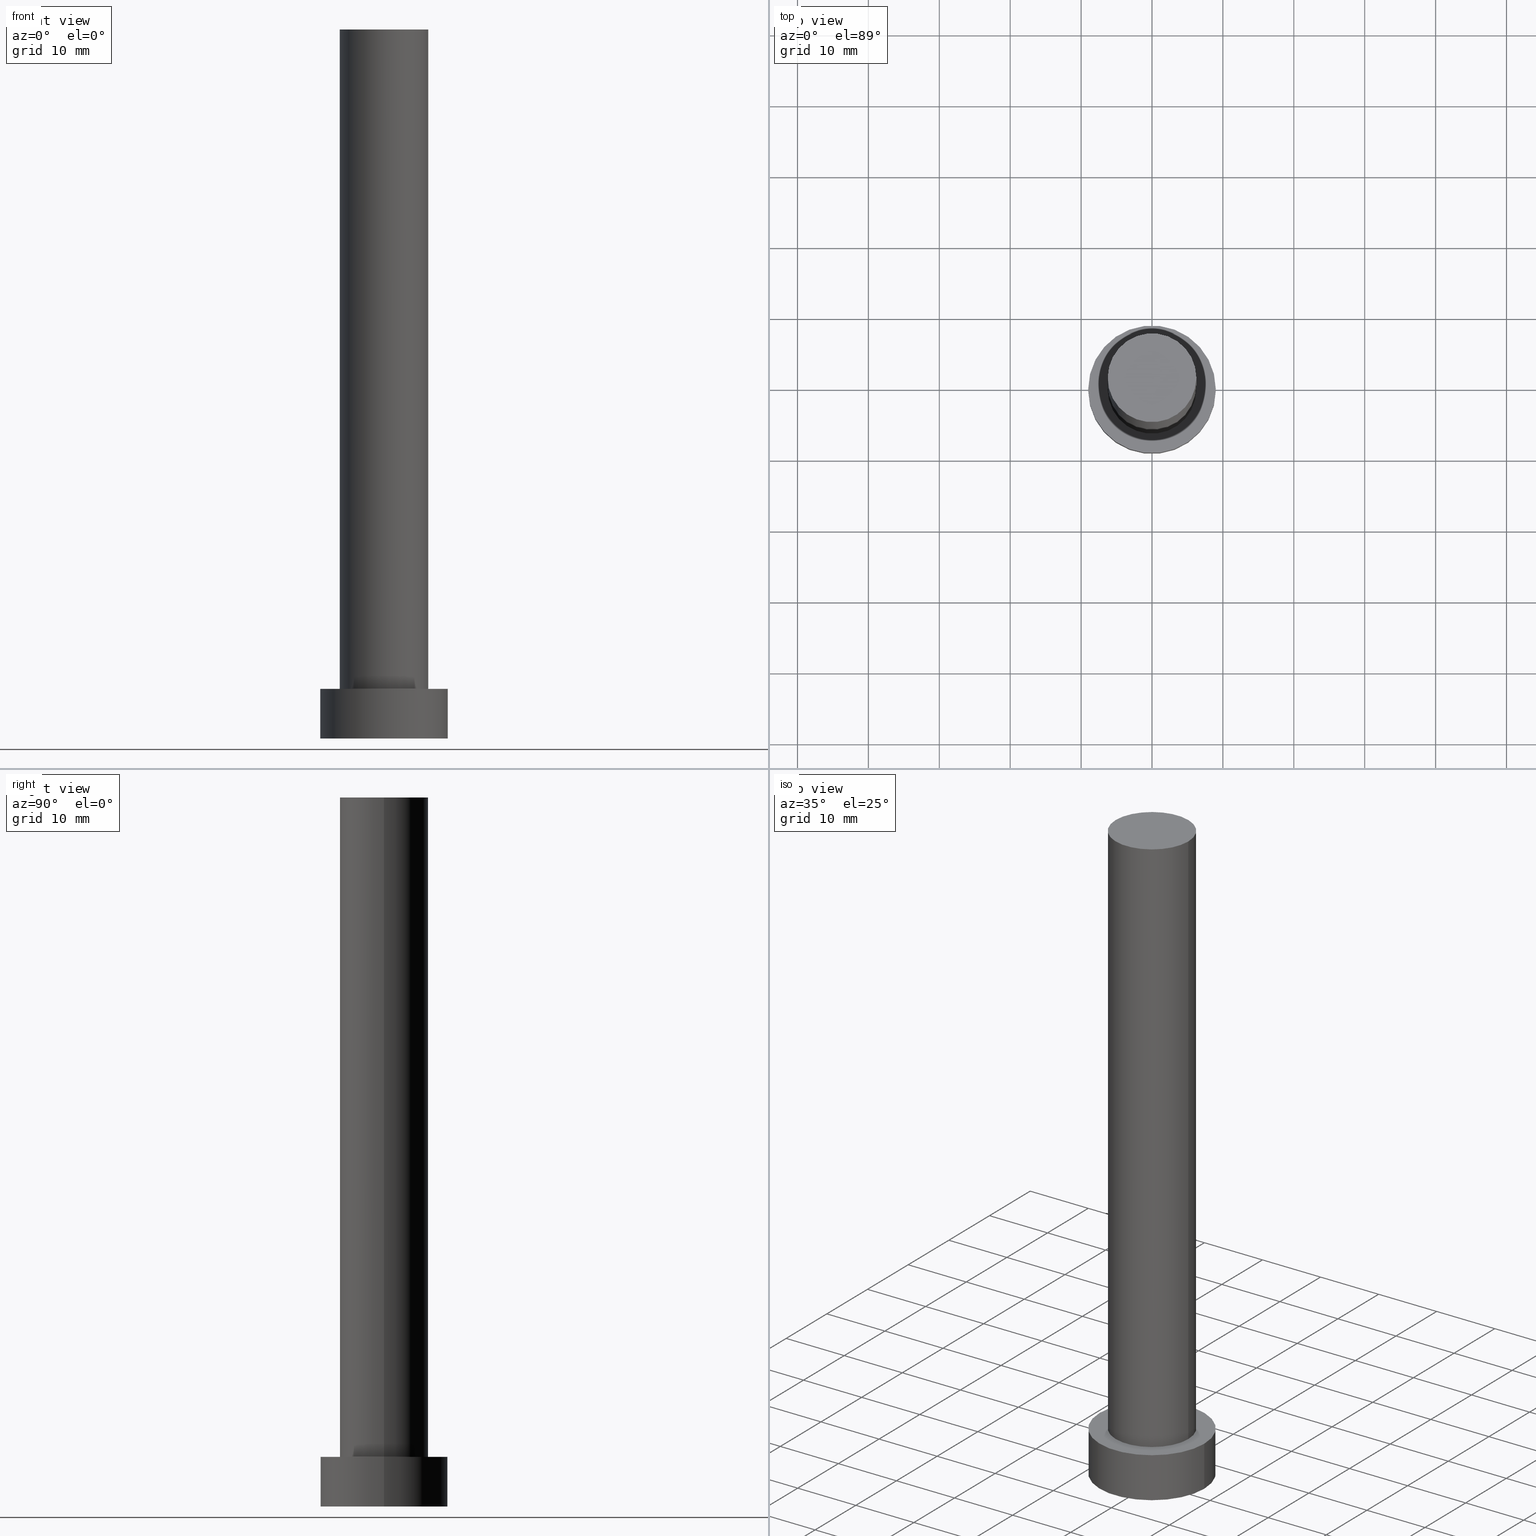
[diagram: canonical four-view strip — front | top / right | iso, engineering-drawing reading convention]
A machine part, canonical four-view strip (front | top / right | iso — engineering-drawing reading convention). The complete STEP part file that produces these views, byte-faithful:
ISO-10303-21;
HEADER;
FILE_DESCRIPTION (( 'STEP AP203' ),
    '1' );
FILE_NAME ('68f3.STEP',
    '2023-02-13T12:24:07',
    ( '' ),
    ( '' ),
    'SwSTEP 2.0',
    'SolidWorks 2019',
    '' );
FILE_SCHEMA (( 'CONFIG_CONTROL_DESIGN' ));
ENDSEC;

DATA;
#1 = DIRECTION ( 'NONE',  ( 0.000000000000000000, 0.000000000000000000, 1.000000000000000000 ) ) ;
#2 = ADVANCED_FACE ( 'NONE', ( #22 ), #101, .F. ) ;
#3 = APPLICATION_PROTOCOL_DEFINITION ( 'international standard', 'config_control_design', 1994, #98 ) ;
#4 = PERSON_AND_ORGANIZATION_ROLE ( 'design_supplier' ) ;
#5 = AXIS2_PLACEMENT_3D ( 'NONE', #227, #12, #166 ) ;
#6 = EDGE_LOOP ( 'NONE', ( #204, #61 ) ) ;
#7 = PERSON_AND_ORGANIZATION_ROLE ( 'creator' ) ;
#8 = ORIENTED_EDGE ( 'NONE', *, *, #137, .T. ) ;
#9 = CARTESIAN_POINT ( 'NONE',  ( -6.250000000000000000, 0.000000000000000000, 100.0000000000000000 ) ) ;
#10 = CIRCLE ( 'NONE', #250, 9.000000000000000000 ) ;
#11 = DIRECTION ( 'NONE',  ( 0.000000000000000000, 0.000000000000000000, 1.000000000000000000 ) ) ;
#12 = DIRECTION ( 'NONE',  ( 0.000000000000000000, 0.000000000000000000, 1.000000000000000000 ) ) ;
#13 = CIRCLE ( 'NONE', #39, 6.250000000000000000 ) ;
#14 = AXIS2_PLACEMENT_3D ( 'NONE', #144, #107, #52 ) ;
#15 = DIRECTION ( 'NONE',  ( 1.000000000000000000, 0.000000000000000000, -0.000000000000000000 ) ) ;
#16 = APPLICATION_PROTOCOL_DEFINITION ( 'international standard', 'config_control_design', 1994, #75 ) ;
#17 = EDGE_CURVE ( 'NONE', #48, #43, #10, .T. ) ;
#18 = APPROVAL_ROLE ( '' ) ;
#19 = EDGE_CURVE ( 'NONE', #48, #40, #68, .T. ) ;
#20 = VERTEX_POINT ( 'NONE', #167 ) ;
#21 = PERSON_AND_ORGANIZATION ( #77, #163 ) ;
#22 = FACE_OUTER_BOUND ( 'NONE', #162, .T. ) ;
#23 =( GEOMETRIC_REPRESENTATION_CONTEXT ( 3 ) GLOBAL_UNCERTAINTY_ASSIGNED_CONTEXT ( ( #111 ) ) GLOBAL_UNIT_ASSIGNED_CONTEXT ( ( #56, #172, #74 ) ) REPRESENTATION_CONTEXT ( 'NONE', 'WORKASPACE' ) );
#24 = COORDINATED_UNIVERSAL_TIME_OFFSET ( 1, 0, .AHEAD. ) ;
#25 = EDGE_LOOP ( 'NONE', ( #66, #8, #82, #83 ) ) ;
#26 = APPROVAL_STATUS ( 'not_yet_approved' ) ;
#27 = ORIENTED_EDGE ( 'NONE', *, *, #51, .F. ) ;
#28 = APPROVAL ( #195, 'NEUR�EN�' ) ;
#29 = ORIENTED_EDGE ( 'NONE', *, *, #19, .T. ) ;
#30 = DIRECTION ( 'NONE',  ( -0.000000000000000000, -0.000000000000000000, -1.000000000000000000 ) ) ;
#31 = ADVANCED_FACE ( 'NONE', ( #34 ), #208, .T. ) ;
#32 = CARTESIAN_POINT ( 'NONE',  ( -9.000000000000000000, 0.000000000000000000, 7.000000000000000000 ) ) ;
#33 = CARTESIAN_POINT ( 'NONE',  ( 9.000000000000000000, 1.102182119232617714E-15, 7.000000000000000000 ) ) ;
#34 = FACE_OUTER_BOUND ( 'NONE', #47, .T. ) ;
#35 = CARTESIAN_POINT ( 'NONE',  ( 0.000000000000000000, 0.000000000000000000, 7.000000000000000000 ) ) ;
#36 = CC_DESIGN_PERSON_AND_ORGANIZATION_ASSIGNMENT ( #63, #155, ( #236 ) ) ;
#37 = FACE_OUTER_BOUND ( 'NONE', #136, .T. ) ;
#38 = APPROVAL_PERSON_ORGANIZATION ( #115, #28, #18 ) ;
#39 = AXIS2_PLACEMENT_3D ( 'NONE', #207, #188, #230 ) ;
#40 = VERTEX_POINT ( 'NONE', #212 ) ;
#41 = ORIENTED_EDGE ( 'NONE', *, *, #17, .F. ) ;
#42 = CALENDAR_DATE ( 2023, 13, 2 ) ;
#43 = VERTEX_POINT ( 'NONE', #33 ) ;
#44 = PRODUCT_DEFINITION_FORMATION_WITH_SPECIFIED_SOURCE ( 'LIBOVOLN�', '', #236, .NOT_KNOWN. ) ;
#46 = EDGE_CURVE ( 'NONE', #62, #139, #128, .T. ) ;
#45 = CALENDAR_DATE ( 2023, 13, 2 ) ;
#47 = EDGE_LOOP ( 'NONE', ( #226, #201 ) ) ;
#48 = VERTEX_POINT ( 'NONE', #131 ) ;
#49 = DESIGN_CONTEXT ( 'detailed design', #98, 'design' ) ;
#50 = CARTESIAN_POINT ( 'NONE',  ( -6.250000000000000000, 0.000000000000000000, 100.0000000000000000 ) ) ;
#51 = EDGE_CURVE ( 'NONE', #43, #48, #164, .T. ) ;
#52 = DIRECTION ( 'NONE',  ( 1.000000000000000000, 0.000000000000000000, 0.000000000000000000 ) ) ;
#53 = DIRECTION ( 'NONE',  ( -0.000000000000000000, -0.000000000000000000, -1.000000000000000000 ) ) ;
#54 = PLANE ( 'NONE',  #238 ) ;
#55 = DIRECTION ( 'NONE',  ( 1.000000000000000000, 0.000000000000000000, -0.000000000000000000 ) ) ;
#56 =( LENGTH_UNIT ( ) NAMED_UNIT ( * ) SI_UNIT ( .MILLI., .METRE. ) );
#57 = DIRECTION ( 'NONE',  ( -0.000000000000000000, -0.000000000000000000, -1.000000000000000000 ) ) ;
#58 = PRODUCT_DEFINITION_SHAPE ( 'NONE', 'NONE',  #241 ) ;
#59 = DIRECTION ( 'NONE',  ( 0.000000000000000000, 0.000000000000000000, 1.000000000000000000 ) ) ;
#60 = EDGE_CURVE ( 'NONE', #220, #139, #13, .T. ) ;
#61 = ORIENTED_EDGE ( 'NONE', *, *, #51, .T. ) ;
#62 = VERTEX_POINT ( 'NONE', #9 ) ;
#63 = PERSON_AND_ORGANIZATION ( #77, #163 ) ;
#64 = ORIENTED_EDGE ( 'NONE', *, *, #96, .T. ) ;
#65 = PERSON_AND_ORGANIZATION ( #77, #163 ) ;
#66 = ORIENTED_EDGE ( 'NONE', *, *, #223, .F. ) ;
#67 = EDGE_CURVE ( 'NONE', #43, #243, #130, .T. ) ;
#68 = LINE ( 'NONE', #32, #122 ) ;
#69 = DIRECTION ( 'NONE',  ( 0.000000000000000000, 0.000000000000000000, 1.000000000000000000 ) ) ;
#70 = DIRECTION ( 'NONE',  ( -0.000000000000000000, -0.000000000000000000, -1.000000000000000000 ) ) ;
#71 = CARTESIAN_POINT ( 'NONE',  ( 0.000000000000000000, 0.000000000000000000, 7.000000000000000000 ) ) ;
#72 = CC_DESIGN_PERSON_AND_ORGANIZATION_ASSIGNMENT ( #80, #7, ( #44 ) ) ;
#73 = CARTESIAN_POINT ( 'NONE',  ( 0.000000000000000000, 0.000000000000000000, 100.0000000000000000 ) ) ;
#74 =( NAMED_UNIT ( * ) SI_UNIT ( $, .STERADIAN. ) SOLID_ANGLE_UNIT ( ) );
#75 = APPLICATION_CONTEXT ( 'configuration controlled 3d designs of mechanical parts and assemblies' ) ;
#76 = VECTOR ( 'NONE', #53, 1000.000000000000000 ) ;
#77 = PERSON ( 'NEUR�EN�', 'NEUR�EN�', 'NEUR�EN�', ('NEUR�EN�'), ('NEUR�EN�'), ('NEUR�EN�') ) ;
#78 = DIRECTION ( 'NONE',  ( -1.000000000000000000, 0.000000000000000000, 0.000000000000000000 ) ) ;
#79 = CC_DESIGN_DATE_AND_TIME_ASSIGNMENT ( #99, #81, ( #241 ) ) ;
#80 = PERSON_AND_ORGANIZATION ( #77, #163 ) ;
#81 = DATE_TIME_ROLE ( 'creation_date' ) ;
#82 = ORIENTED_EDGE ( 'NONE', *, *, #60, .T. ) ;
#83 = ORIENTED_EDGE ( 'NONE', *, *, #46, .F. ) ;
#84 = VECTOR ( 'NONE', #187, 1000.000000000000000 ) ;
#85 = CC_DESIGN_SECURITY_CLASSIFICATION ( #189, ( #44 ) ) ;
#86 = SHAPE_DEFINITION_REPRESENTATION ( #58, #134 ) ;
#87 = CARTESIAN_POINT ( 'NONE',  ( 0.000000000000000000, 0.000000000000000000, 0.000000000000000000 ) ) ;
#88 = DATE_AND_TIME ( #124, #184 ) ;
#89 = CYLINDRICAL_SURFACE ( 'NONE', #113, 9.000000000000000000 ) ;
#90 = CARTESIAN_POINT ( 'NONE',  ( 0.000000000000000000, 0.000000000000000000, 0.000000000000000000 ) ) ;
#91 = FACE_OUTER_BOUND ( 'NONE', #181, .T. ) ;
#92 = EDGE_CURVE ( 'NONE', #40, #243, #95, .T. ) ;
#93 = CARTESIAN_POINT ( 'NONE',  ( 6.250000000000000000, 7.654042494670955634E-16, 7.000000000000000000 ) ) ;
#94 = CC_DESIGN_APPROVAL ( #214, ( #44 ) ) ;
#95 = CIRCLE ( 'NONE', #206, 9.000000000000000000 ) ;
#96 = EDGE_CURVE ( 'NONE', #243, #40, #196, .T. ) ;
#97 = COORDINATED_UNIVERSAL_TIME_OFFSET ( 1, 0, .AHEAD. ) ;
#98 = APPLICATION_CONTEXT ( 'configuration controlled 3d designs of mechanical parts and assemblies' ) ;
#100 = ADVANCED_FACE ( 'NONE', ( #205 ), #148, .T. ) ;
#99 = DATE_AND_TIME ( #45, #153 ) ;
#101 = PLANE ( 'NONE',  #255 ) ;
#102 = CALENDAR_DATE ( 2023, 13, 2 ) ;
#103 = PERSON_AND_ORGANIZATION ( #77, #163 ) ;
#104 = ORIENTED_EDGE ( 'NONE', *, *, #60, .F. ) ;
#105 = DIRECTION ( 'NONE',  ( -1.000000000000000000, 0.000000000000000000, 0.000000000000000000 ) ) ;
#106 = DIRECTION ( 'NONE',  ( -0.000000000000000000, -0.000000000000000000, -1.000000000000000000 ) ) ;
#107 = DIRECTION ( 'NONE',  ( 0.000000000000000000, 0.000000000000000000, 1.000000000000000000 ) ) ;
#108 = CARTESIAN_POINT ( 'NONE',  ( 0.000000000000000000, 0.000000000000000000, 7.000000000000000000 ) ) ;
#109 = DIRECTION ( 'NONE',  ( 0.000000000000000000, 0.000000000000000000, 1.000000000000000000 ) ) ;
#110 = CC_DESIGN_PERSON_AND_ORGANIZATION_ASSIGNMENT ( #161, #4, ( #44 ) ) ;
#111 = UNCERTAINTY_MEASURE_WITH_UNIT (LENGTH_MEASURE( 1.000000000000000082E-05 ), #56, 'distance_accuracy_value', 'NONE');
#112 = DIRECTION ( 'NONE',  ( -1.000000000000000000, 0.000000000000000000, 0.000000000000000000 ) ) ;
#113 = AXIS2_PLACEMENT_3D ( 'NONE', #71, #232, #147 ) ;
#114 = CC_DESIGN_PERSON_AND_ORGANIZATION_ASSIGNMENT ( #21, #224, ( #241 ) ) ;
#115 = PERSON_AND_ORGANIZATION ( #77, #163 ) ;
#116 = AXIS2_PLACEMENT_3D ( 'NONE', #151, #57, #78 ) ;
#117 = AXIS2_PLACEMENT_3D ( 'NONE', #186, #11, #248 ) ;
#118 = EDGE_LOOP ( 'NONE', ( #141, #104 ) ) ;
#119 = DATE_AND_TIME ( #138, #178 ) ;
#120 = ORIENTED_EDGE ( 'NONE', *, *, #67, .T. ) ;
#121 = APPROVAL_PERSON_ORGANIZATION ( #65, #209, #140 ) ;
#122 = VECTOR ( 'NONE', #70, 1000.000000000000000 ) ;
#123 = DATE_AND_TIME ( #42, #127 ) ;
#124 = CALENDAR_DATE ( 2023, 13, 2 ) ;
#125 = ORIENTED_EDGE ( 'NONE', *, *, #92, .T. ) ;
#126 = CARTESIAN_POINT ( 'NONE',  ( 0.000000000000000000, 0.000000000000000000, 7.000000000000000000 ) ) ;
#127 = LOCAL_TIME ( 13, 24, 7.000000000000000000, #97 ) ;
#128 = LINE ( 'NONE', #50, #76 ) ;
#129 = DIRECTION ( 'NONE',  ( 1.000000000000000000, 0.000000000000000000, 0.000000000000000000 ) ) ;
#130 = LINE ( 'NONE', #247, #174 ) ;
#131 = CARTESIAN_POINT ( 'NONE',  ( -9.000000000000000000, 0.000000000000000000, 7.000000000000000000 ) ) ;
#132 = EDGE_CURVE ( 'NONE', #62, #20, #216, .T. ) ;
#133 = APPROVAL_DATE_TIME ( #88, #28 ) ;
#134 = ADVANCED_BREP_SHAPE_REPRESENTATION ( '68f3', ( #228, #149 ), #23 ) ;
#135 = DIRECTION ( 'NONE',  ( 1.000000000000000000, 0.000000000000000000, 0.000000000000000000 ) ) ;
#136 = EDGE_LOOP ( 'NONE', ( #182, #159, #156, #245 ) ) ;
#137 = EDGE_CURVE ( 'NONE', #20, #220, #145, .T. ) ;
#138 = CALENDAR_DATE ( 2023, 13, 2 ) ;
#139 = VERTEX_POINT ( 'NONE', #169 ) ;
#140 = APPROVAL_ROLE ( '' ) ;
#141 = ORIENTED_EDGE ( 'NONE', *, *, #160, .F. ) ;
#143 = ADVANCED_FACE ( 'NONE', ( #91 ), #89, .T. ) ;
#142 = DATE_AND_TIME ( #102, #233 ) ;
#144 = CARTESIAN_POINT ( 'NONE',  ( 0.000000000000000000, 0.000000000000000000, 7.000000000000000000 ) ) ;
#145 = LINE ( 'NONE', #229, #84 ) ;
#146 = FACE_OUTER_BOUND ( 'NONE', #6, .T. ) ;
#147 = DIRECTION ( 'NONE',  ( -1.000000000000000000, 0.000000000000000000, 0.000000000000000000 ) ) ;
#148 = CYLINDRICAL_SURFACE ( 'NONE', #234, 9.000000000000000000 ) ;
#149 = AXIS2_PLACEMENT_3D ( 'NONE', #177, #1, #217 ) ;
#150 = ADVANCED_FACE ( 'NONE', ( #249, #146 ), #54, .T. ) ;
#151 = CARTESIAN_POINT ( 'NONE',  ( 0.000000000000000000, 0.000000000000000000, 100.0000000000000000 ) ) ;
#152 = MECHANICAL_CONTEXT ( 'NONE', #75, 'mechanical' ) ;
#153 = LOCAL_TIME ( 13, 24, 7.000000000000000000, #24 ) ;
#154 = CARTESIAN_POINT ( 'NONE',  ( 0.000000000000000000, 0.000000000000000000, 100.0000000000000000 ) ) ;
#155 = PERSON_AND_ORGANIZATION_ROLE ( 'design_owner' ) ;
#156 = ORIENTED_EDGE ( 'NONE', *, *, #46, .T. ) ;
#157 = AXIS2_PLACEMENT_3D ( 'NONE', #73, #165, #55 ) ;
#158 = PERSON_AND_ORGANIZATION_ROLE ( 'classification_officer' ) ;
#159 = ORIENTED_EDGE ( 'NONE', *, *, #132, .F. ) ;
#160 = EDGE_CURVE ( 'NONE', #139, #220, #173, .T. ) ;
#161 = PERSON_AND_ORGANIZATION ( #77, #163 ) ;
#162 = EDGE_LOOP ( 'NONE', ( #198, #183 ) ) ;
#163 = ORGANIZATION ( 'NEUR�EN�', 'NEUR�EN�', '' ) ;
#164 = CIRCLE ( 'NONE', #14, 9.000000000000000000 ) ;
#165 = DIRECTION ( 'NONE',  ( 0.000000000000000000, 0.000000000000000000, 1.000000000000000000 ) ) ;
#166 = DIRECTION ( 'NONE',  ( 1.000000000000000000, 0.000000000000000000, 0.000000000000000000 ) ) ;
#167 = CARTESIAN_POINT ( 'NONE',  ( 6.250000000000000000, 7.654042494670955634E-16, 100.0000000000000000 ) ) ;
#168 = CC_DESIGN_APPROVAL ( #28, ( #189 ) ) ;
#169 = CARTESIAN_POINT ( 'NONE',  ( -6.250000000000000000, 0.000000000000000000, 7.000000000000000000 ) ) ;
#170 = CARTESIAN_POINT ( 'NONE',  ( 0.000000000000000000, 0.000000000000000000, 7.000000000000000000 ) ) ;
#171 = CC_DESIGN_PERSON_AND_ORGANIZATION_ASSIGNMENT ( #103, #158, ( #189 ) ) ;
#172 =( NAMED_UNIT ( * ) PLANE_ANGLE_UNIT ( ) SI_UNIT ( $, .RADIAN. ) );
#173 = CIRCLE ( 'NONE', #193, 6.250000000000000000 ) ;
#174 = VECTOR ( 'NONE', #106, 1000.000000000000000 ) ;
#175 = CYLINDRICAL_SURFACE ( 'NONE', #254, 6.250000000000000000 ) ;
#176 = CC_DESIGN_DATE_AND_TIME_ASSIGNMENT ( #119, #244, ( #189 ) ) ;
#177 = CARTESIAN_POINT ( 'NONE',  ( 0.000000000000000000, 0.000000000000000000, 0.000000000000000000 ) ) ;
#178 = LOCAL_TIME ( 13, 24, 7.000000000000000000, #242 ) ;
#179 = ADVANCED_FACE ( 'NONE', ( #213 ), #194, .T. ) ;
#180 = APPROVAL_DATE_TIME ( #123, #214 ) ;
#181 = EDGE_LOOP ( 'NONE', ( #27, #120, #64, #200 ) ) ;
#182 = ORIENTED_EDGE ( 'NONE', *, *, #137, .F. ) ;
#183 = ORIENTED_EDGE ( 'NONE', *, *, #96, .F. ) ;
#184 = LOCAL_TIME ( 13, 24, 7.000000000000000000, #246 ) ;
#185 = PRODUCT_RELATED_PRODUCT_CATEGORY ( 'detail', '', ( #236 ) ) ;
#186 = CARTESIAN_POINT ( 'NONE',  ( 0.000000000000000000, 0.000000000000000000, 100.0000000000000000 ) ) ;
#187 = DIRECTION ( 'NONE',  ( -0.000000000000000000, -0.000000000000000000, -1.000000000000000000 ) ) ;
#188 = DIRECTION ( 'NONE',  ( 0.000000000000000000, 0.000000000000000000, 1.000000000000000000 ) ) ;
#189 = SECURITY_CLASSIFICATION ( '', '', #203 ) ;
#190 = DIRECTION ( 'NONE',  ( 0.000000000000000000, 0.000000000000000000, 1.000000000000000000 ) ) ;
#191 = DIRECTION ( 'NONE',  ( 1.000000000000000000, 0.000000000000000000, 0.000000000000000000 ) ) ;
#192 = CARTESIAN_POINT ( 'NONE',  ( 9.000000000000000000, 1.102182119232617714E-15, 0.000000000000000000 ) ) ;
#193 = AXIS2_PLACEMENT_3D ( 'NONE', #170, #252, #135 ) ;
#194 = CYLINDRICAL_SURFACE ( 'NONE', #116, 6.250000000000000000 ) ;
#195 = APPROVAL_STATUS ( 'not_yet_approved' ) ;
#196 = CIRCLE ( 'NONE', #5, 9.000000000000000000 ) ;
#197 = APPROVAL_ROLE ( '' ) ;
#198 = ORIENTED_EDGE ( 'NONE', *, *, #92, .F. ) ;
#199 = APPROVAL_DATE_TIME ( #142, #209 ) ;
#200 = ORIENTED_EDGE ( 'NONE', *, *, #19, .F. ) ;
#201 = ORIENTED_EDGE ( 'NONE', *, *, #223, .T. ) ;
#202 = CIRCLE ( 'NONE', #211, 6.250000000000000000 ) ;
#203 = SECURITY_CLASSIFICATION_LEVEL ( 'unclassified' ) ;
#204 = ORIENTED_EDGE ( 'NONE', *, *, #17, .T. ) ;
#205 = FACE_OUTER_BOUND ( 'NONE', #222, .T. ) ;
#206 = AXIS2_PLACEMENT_3D ( 'NONE', #90, #231, #129 ) ;
#207 = CARTESIAN_POINT ( 'NONE',  ( 0.000000000000000000, 0.000000000000000000, 7.000000000000000000 ) ) ;
#208 = PLANE ( 'NONE',  #157 ) ;
#209 = APPROVAL ( #26, 'NEUR�EN�' ) ;
#210 = DIRECTION ( 'NONE',  ( 1.000000000000000000, 0.000000000000000000, 0.000000000000000000 ) ) ;
#211 = AXIS2_PLACEMENT_3D ( 'NONE', #154, #59, #191 ) ;
#212 = CARTESIAN_POINT ( 'NONE',  ( -9.000000000000000000, 0.000000000000000000, 0.000000000000000000 ) ) ;
#213 = FACE_OUTER_BOUND ( 'NONE', #25, .T. ) ;
#214 = APPROVAL ( #219, 'NEUR�EN�' ) ;
#215 = CC_DESIGN_APPROVAL ( #209, ( #241 ) ) ;
#216 = CIRCLE ( 'NONE', #117, 6.250000000000000000 ) ;
#217 = DIRECTION ( 'NONE',  ( 1.000000000000000000, 0.000000000000000000, 0.000000000000000000 ) ) ;
#218 = DIRECTION ( 'NONE',  ( -0.000000000000000000, -0.000000000000000000, -1.000000000000000000 ) ) ;
#219 = APPROVAL_STATUS ( 'not_yet_approved' ) ;
#220 = VERTEX_POINT ( 'NONE', #93 ) ;
#221 = COORDINATED_UNIVERSAL_TIME_OFFSET ( 1, 0, .AHEAD. ) ;
#222 = EDGE_LOOP ( 'NONE', ( #225, #41, #29, #125 ) ) ;
#223 = EDGE_CURVE ( 'NONE', #20, #62, #202, .T. ) ;
#224 = PERSON_AND_ORGANIZATION_ROLE ( 'creator' ) ;
#225 = ORIENTED_EDGE ( 'NONE', *, *, #67, .F. ) ;
#226 = ORIENTED_EDGE ( 'NONE', *, *, #132, .T. ) ;
#227 = CARTESIAN_POINT ( 'NONE',  ( 0.000000000000000000, 0.000000000000000000, 0.000000000000000000 ) ) ;
#228 = MANIFOLD_SOLID_BREP ( 'P�idat vysunut�m3', #239 ) ;
#229 = CARTESIAN_POINT ( 'NONE',  ( 6.250000000000000000, 7.654042494670955634E-16, 100.0000000000000000 ) ) ;
#230 = DIRECTION ( 'NONE',  ( 1.000000000000000000, 0.000000000000000000, 0.000000000000000000 ) ) ;
#231 = DIRECTION ( 'NONE',  ( 0.000000000000000000, 0.000000000000000000, 1.000000000000000000 ) ) ;
#232 = DIRECTION ( 'NONE',  ( -0.000000000000000000, -0.000000000000000000, -1.000000000000000000 ) ) ;
#233 = LOCAL_TIME ( 13, 24, 7.000000000000000000, #221 ) ;
#234 = AXIS2_PLACEMENT_3D ( 'NONE', #126, #30, #105 ) ;
#235 = ADVANCED_FACE ( 'NONE', ( #37 ), #175, .T. ) ;
#236 = PRODUCT ( '68f3', '68f3', '', ( #152 ) ) ;
#237 = APPROVAL_PERSON_ORGANIZATION ( #240, #214, #197 ) ;
#238 = AXIS2_PLACEMENT_3D ( 'NONE', #108, #190, #15 ) ;
#239 = CLOSED_SHELL ( 'NONE', ( #179, #143, #100, #150, #2, #235, #31 ) ) ;
#240 = PERSON_AND_ORGANIZATION ( #77, #163 ) ;
#241 = PRODUCT_DEFINITION ( 'NEZN�M�', '', #44, #49 ) ;
#242 = COORDINATED_UNIVERSAL_TIME_OFFSET ( 1, 0, .AHEAD. ) ;
#243 = VERTEX_POINT ( 'NONE', #192 ) ;
#244 = DATE_TIME_ROLE ( 'classification_date' ) ;
#245 = ORIENTED_EDGE ( 'NONE', *, *, #160, .T. ) ;
#246 = COORDINATED_UNIVERSAL_TIME_OFFSET ( 1, 0, .AHEAD. ) ;
#247 = CARTESIAN_POINT ( 'NONE',  ( 9.000000000000000000, 1.102182119232617714E-15, 7.000000000000000000 ) ) ;
#248 = DIRECTION ( 'NONE',  ( 1.000000000000000000, 0.000000000000000000, 0.000000000000000000 ) ) ;
#249 = FACE_BOUND ( 'NONE', #118, .T. ) ;
#250 = AXIS2_PLACEMENT_3D ( 'NONE', #35, #69, #210 ) ;
#251 = DIRECTION ( 'NONE',  ( 1.000000000000000000, 0.000000000000000000, -0.000000000000000000 ) ) ;
#252 = DIRECTION ( 'NONE',  ( 0.000000000000000000, 0.000000000000000000, 1.000000000000000000 ) ) ;
#253 = CARTESIAN_POINT ( 'NONE',  ( 0.000000000000000000, 0.000000000000000000, 100.0000000000000000 ) ) ;
#254 = AXIS2_PLACEMENT_3D ( 'NONE', #253, #218, #112 ) ;
#255 = AXIS2_PLACEMENT_3D ( 'NONE', #87, #109, #251 ) ;
ENDSEC;
END-ISO-10303-21;
